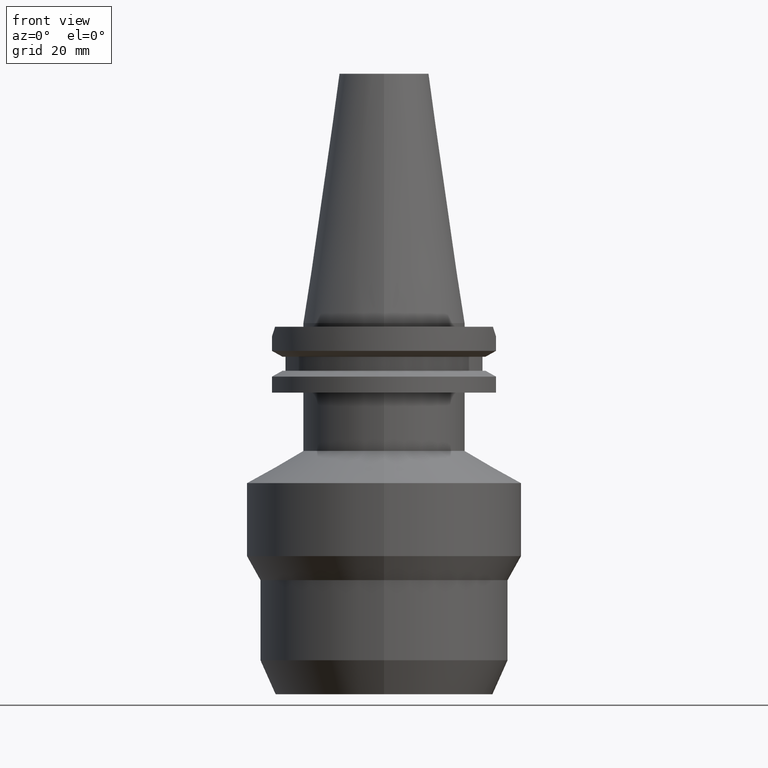
[diagram: clean part render]
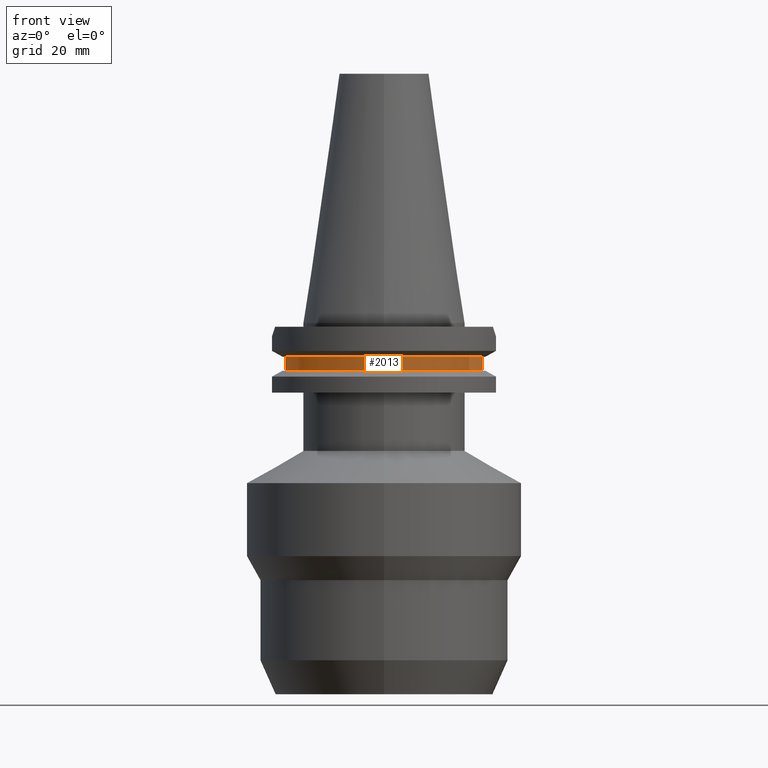
[diagram: same view with one face highlighted and labeled with its STEP entity id]
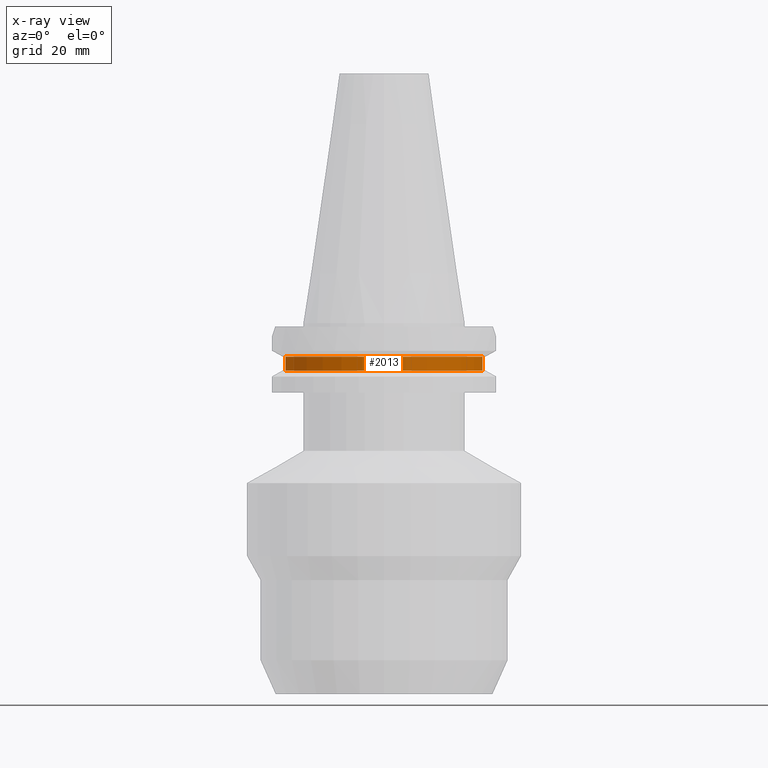
[diagram: x-ray of the same camera — body ghosted, the highlighted face saturated]
A machine part, front view. The second image highlights one B-rep face of the part: STEP entity #2013.
The next image is the same camera in x-ray: the body ghosted, the highlighted face saturated — about 0% of this face is hidden behind the body in this view.
In plain terms, the highlighted cylindrical surface (partial cylindrical patch) has radius 28.18 mm, axis along (0, 0, -1).
Its self-contained STEP definition (entity closure, byte-faithful):
#690=CARTESIAN_POINT('',(0.E0,2.164471368983E-14,-9.2075E0));
#691=DIRECTION('',(0.E0,0.E0,-1.E0));
#692=DIRECTION('',(9.568350128908E-1,-2.906316536551E-1,0.E0));
#693=AXIS2_PLACEMENT_3D('',#690,#691,#692);
#698=CARTESIAN_POINT('',(0.E0,2.164471368983E-14,-9.2075E0));
#699=DIRECTION('',(0.E0,0.E0,-1.E0));
#700=DIRECTION('',(0.E0,-1.E0,0.E0));
#701=AXIS2_PLACEMENT_3D('',#698,#699,#700);
#729=DIRECTION('',(0.E0,0.E0,-1.E0));
#730=VECTOR('',#729,3.84E0);
#731=CARTESIAN_POINT('',(2.696361066326E1,-8.19E0,-9.2075E0));
#732=LINE('',#731,#730);
#736=DIRECTION('',(0.E0,0.E0,1.E0));
#737=VECTOR('',#736,3.84E0);
#738=CARTESIAN_POINT('',(-2.696361066326E1,-8.19E0,-1.30475E1));
#739=LINE('',#738,#737);
#766=CARTESIAN_POINT('',(0.E0,2.164471368983E-14,-1.30475E1));
#767=DIRECTION('',(0.E0,0.E0,1.E0));
#768=DIRECTION('',(-9.568350128908E-1,-2.906316536551E-1,0.E0));
#769=AXIS2_PLACEMENT_3D('',#766,#767,#768);
#774=CARTESIAN_POINT('',(0.E0,2.164471368983E-14,-1.30475E1));
#775=DIRECTION('',(0.E0,0.E0,1.E0));
#776=DIRECTION('',(0.E0,-1.E0,0.E0));
#777=AXIS2_PLACEMENT_3D('',#774,#775,#776);
#1379=CARTESIAN_POINT('',(2.696361066326E1,-8.19E0,-1.30475E1));
#1380=VERTEX_POINT('',#1379);
#1381=CARTESIAN_POINT('',(2.696361066326E1,-8.19E0,-9.2075E0));
#1382=VERTEX_POINT('',#1381);
#1405=CARTESIAN_POINT('',(-2.696361066326E1,-8.19E0,-9.2075E0));
#1406=VERTEX_POINT('',#1405);
#1407=CARTESIAN_POINT('',(-2.696361066326E1,-8.19E0,-1.30475E1));
#1408=VERTEX_POINT('',#1407);
#1436=CARTESIAN_POINT('',(3.729449030926E-14,-2.818E1,-1.30475E1));
#1437=VERTEX_POINT('',#1436);
#1442=CARTESIAN_POINT('',(-3.729449030926E-14,-2.818E1,-9.2075E0));
#1443=VERTEX_POINT('',#1442);
#1998=CARTESIAN_POINT('',(0.E0,2.164471368983E-14,7.67425E1));
#1999=DIRECTION('',(0.E0,0.E0,-1.E0));
#2000=DIRECTION('',(0.E0,-1.E0,0.E0));
#2001=AXIS2_PLACEMENT_3D('',#1998,#1999,#2000);
#2002=CYLINDRICAL_SURFACE('',#2001,2.818E1);
#2003=ORIENTED_EDGE('',*,*,#1914,.T.);
#2005=ORIENTED_EDGE('',*,*,#2004,.F.);
#2007=ORIENTED_EDGE('',*,*,#2006,.F.);
#2008=ORIENTED_EDGE('',*,*,#1956,.T.);
#2009=ORIENTED_EDGE('',*,*,#1990,.F.);
#2010=ORIENTED_EDGE('',*,*,#1988,.F.);
#2011=EDGE_LOOP('',(#2003,#2005,#2007,#2008,#2009,#2010));
#2012=FACE_OUTER_BOUND('',#2011,.F.);
#694=CIRCLE('',#693,2.818E1);
#702=CIRCLE('',#701,2.818E1);
#770=CIRCLE('',#769,2.818E1);
#778=CIRCLE('',#777,2.818E1);
#1914=EDGE_CURVE('',#1382,#1380,#732,.T.);
#1956=EDGE_CURVE('',#1408,#1406,#739,.T.);
#1988=EDGE_CURVE('',#1382,#1443,#694,.T.);
#1990=EDGE_CURVE('',#1443,#1406,#702,.T.);
#2004=EDGE_CURVE('',#1437,#1380,#778,.T.);
#2006=EDGE_CURVE('',#1408,#1437,#770,.T.);
#2013=ADVANCED_FACE('',(#2012),#2002,.T.);